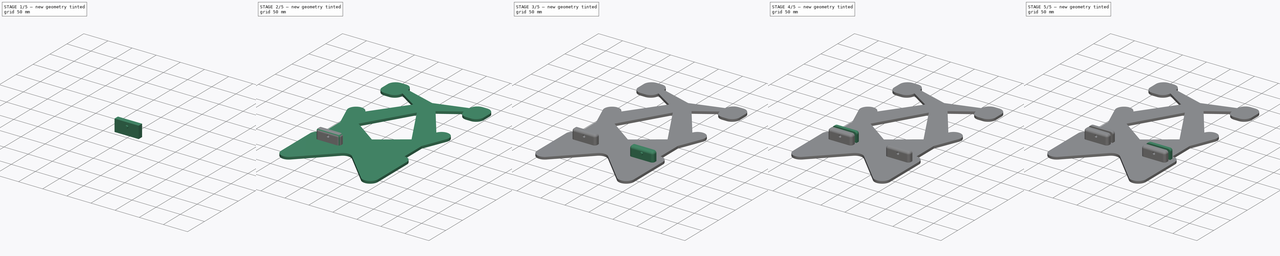
[diagram: build sequence overview — one tinted view per stage of 5, left to right]
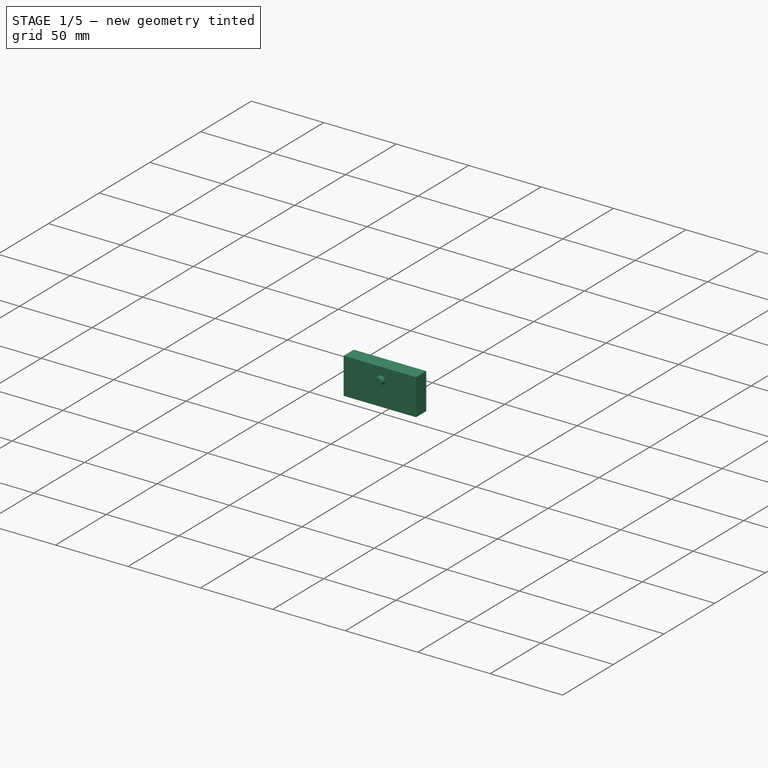
[diagram: stage 1 of 5 — iso view after this stage's code; geometry added in this stage tinted green]
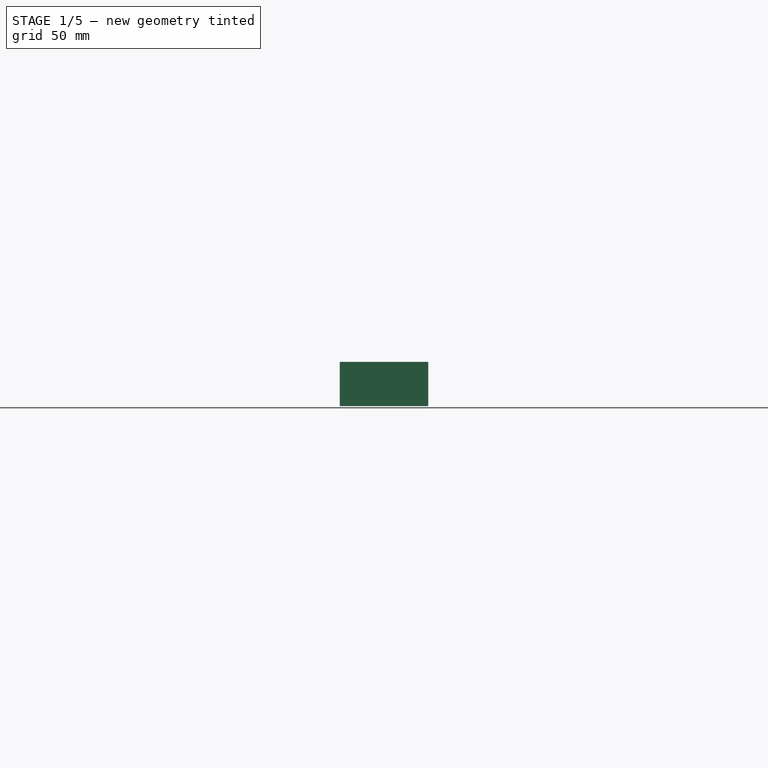
[diagram: stage 1 of 5 — front view after this stage's code; geometry added in this stage tinted green]
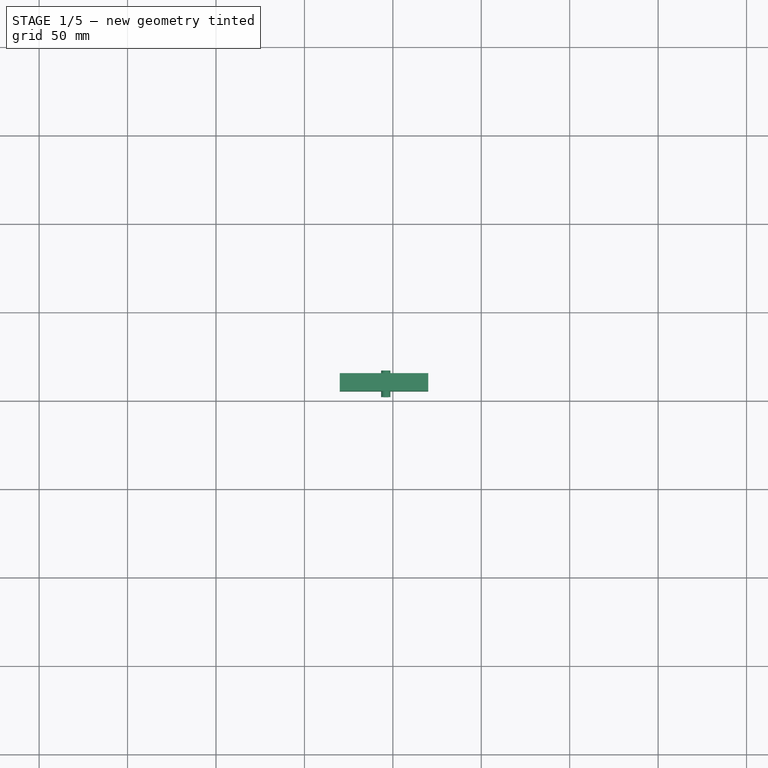
[diagram: stage 1 of 5 — top view after this stage's code; geometry added in this stage tinted green]
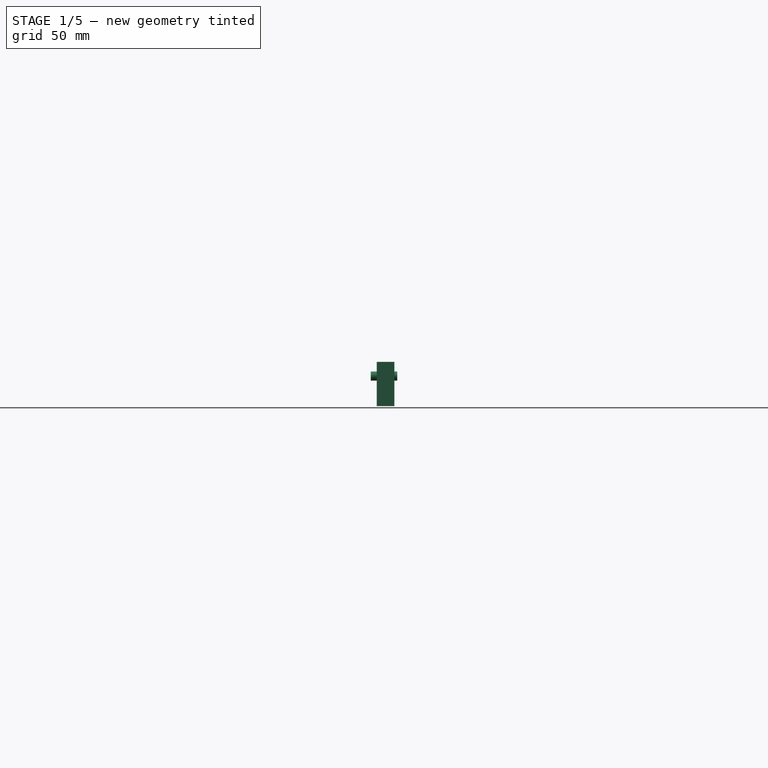
[diagram: stage 1 of 5 — right view after this stage's code; geometry added in this stage tinted green]
FCSTD DOCUMENT  (FreeCAD 0.21R33771 (Git))
Label: SFT-Mk5-Base Pad
License: Public Domain
LicenseURL: https://en.wikipedia.org/wiki/Public_domain
objects: Part::MultiFuse×6, Part::Box×4, Part::Fillet×4, Sketcher::SketchObject×3, Part::Extrusion×3, Part::Cylinder×2, Part::Cut×2, PartDesign::Line×2, PartDesign::CoordinateSystem×1, App::Link×1, App::Part×1
note: 27 computed .brp shape members not serialized (recipe doc carries the construction recipe); baked Part::Feature solids carry a one-line shape summary decoded from their .brp

FEATURE [Part::Box] Box  label="Cube"
  AttacherType = Attacher::AttachEngine3D
  Height = 25
  Length = 50
  Placement = pos=(-80,-44.6,0) rot=(0,0,1;0rad)
  Width = 10
FEATURE [Part::Cylinder] Cylinder
  Angle = 360
  AttacherType = Attacher::AttachEngine3D
  FirstAngle = 0
  Height = 15
  Placement = pos=(-54,-33,17) rot=(1,0,0;1.5708rad)
  Radius = 2.6
  SecondAngle = 0
FEATURE [Sketcher::SketchObject] Sketch002  label="Nut Pocket Sketch001"
  FullyConstrained = true
  MapMode = 5
  Placement = pos=(0,0,0) rot=(1,0,0;1.5708rad)
  Support = -> [XZ_Plane]
  sketch-geometry (10):
    g0: LineSegment StartX=4.07032 StartY=-2.35 StartZ=0 EndX=4.07032 EndY=2.35 EndZ=0
    g1: LineSegment StartX=4.07032 StartY=2.35 StartZ=0 EndX=0 EndY=4.7 EndZ=0
    g2: LineSegment StartX=0 StartY=4.7 StartZ=0 EndX=-4.07032 EndY=2.35 EndZ=0
    g3: LineSegment StartX=-4.07032 StartY=2.35 StartZ=0 EndX=-4.07032 EndY=-2.35 EndZ=0
    g4: LineSegment StartX=-4.07032 StartY=-2.35 StartZ=0 EndX=-9e-16 EndY=-4.7 EndZ=0
    g5: LineSegment StartX=-9e-16 StartY=-4.7 StartZ=0 EndX=4.07032 EndY=-2.35 EndZ=0
    g6: Circle CenterX=0 CenterY=0 CenterZ=0 NormalX=0 NormalY=0 NormalZ=1 AngleXU=0 Radius=4.7
    g7: LineSegment StartX=-4.07032 StartY=2.35 StartZ=0 EndX=-4.07032 EndY=4.7 EndZ=0
    g8: LineSegment StartX=4.07032 StartY=2.35 StartZ=0 EndX=4.07032 EndY=4.7 EndZ=0
    g9: LineSegment StartX=4.07032 StartY=4.7 StartZ=0 EndX=-4.07032 EndY=4.7 EndZ=0
  constraints (24):
    c: Coincident(g0,g1)
    c: Coincident(g1,g2)
    c: Coincident(g2,g3)
    c: Coincident(g3,g4)
    c: Coincident(g4,g5)
    c: Coincident(g5,g0)
    c: Equal(g0, g1-g5) x5
    c: PointOnObject(g0,g6)
    c: PointOnObject(g1,g6)
    c: PointOnObject(g2,g6)
    c: PointOnObject(g3,g6)
    c: PointOnObject(g4,g6)
    c: PointOnObject(g5,g6)
    c: Coincident(g6,g-1)
    c: Radius(g6) = 4.7
    c: PointOnObject(g1,g-2)
    c: Coincident(g7,g3)
    c: Vertical(g7)
    c: Coincident(g8,g0)
    c: Vertical(g8)
    c: Coincident(g9,g8)
    c: Coincident(g9,g7)
    c: Horizontal(g9)
    c: PointOnObject(g1,g9)
FEATURE [Part::Extrusion] Extrude002  label="Nut Pocket001"
  Base = -> Sketch002
  Dir = (0,-1,-2e-16)
  DirMode = 2
  FaceMakerClass = Part::FaceMakerBullseye
  LengthFwd = 4
  LengthRev = 0
  Placement = pos=(-54,-39.5,17) rot=(0,0,1;0rad)
  Solid = true
  Symmetric = true
FEATURE [Part::MultiFuse] Fusion
  Shapes = -> [Cylinder,Extrude002]
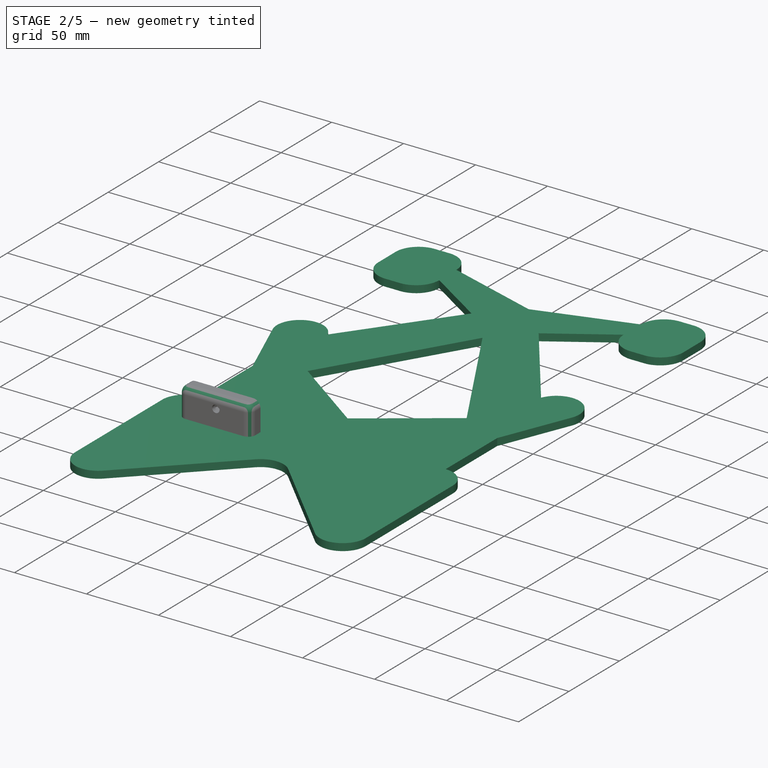
[diagram: stage 2 of 5 — iso view after this stage's code; geometry added in this stage tinted green]
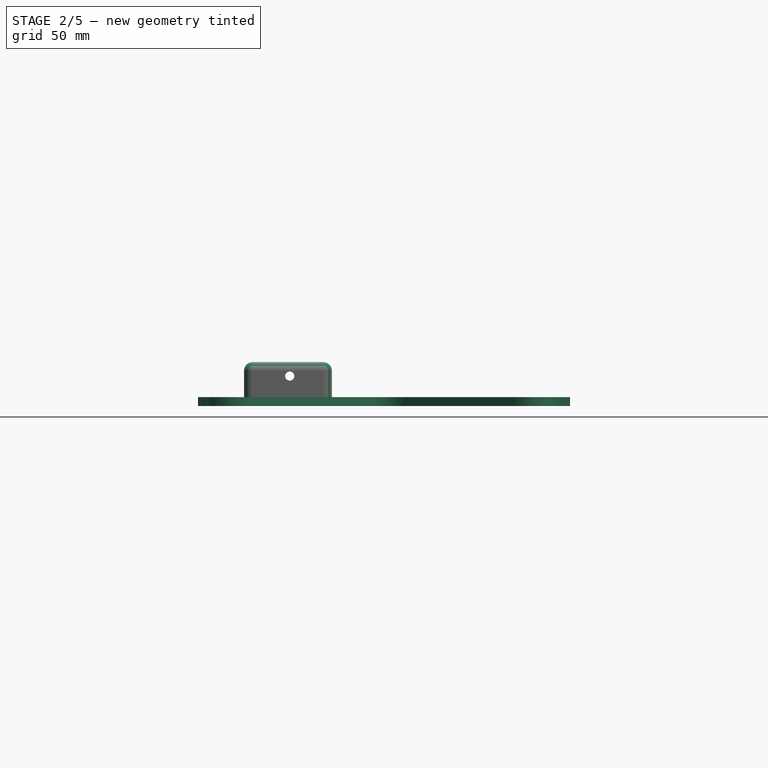
[diagram: stage 2 of 5 — front view after this stage's code; geometry added in this stage tinted green]
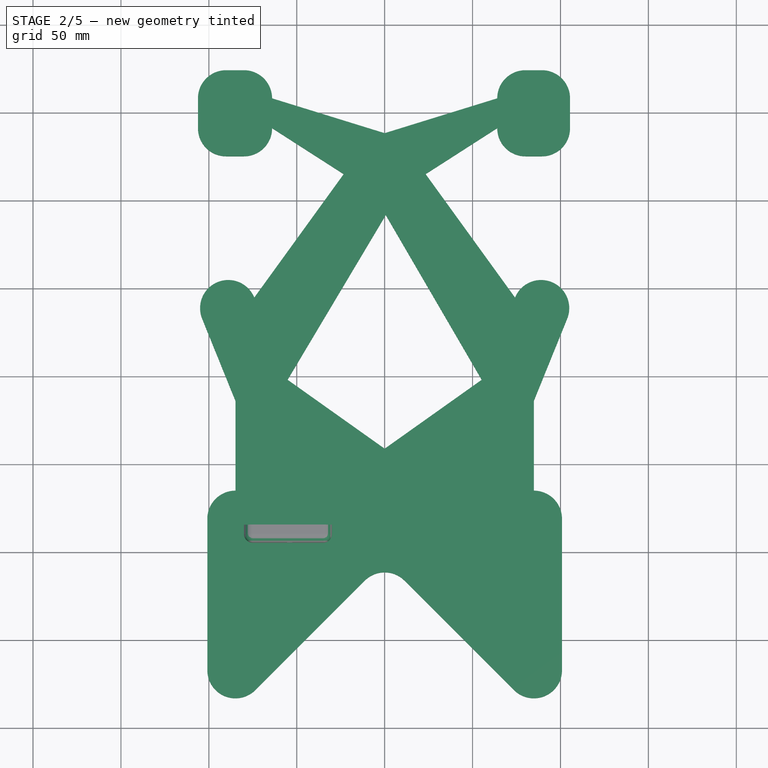
[diagram: stage 2 of 5 — top view after this stage's code; geometry added in this stage tinted green]
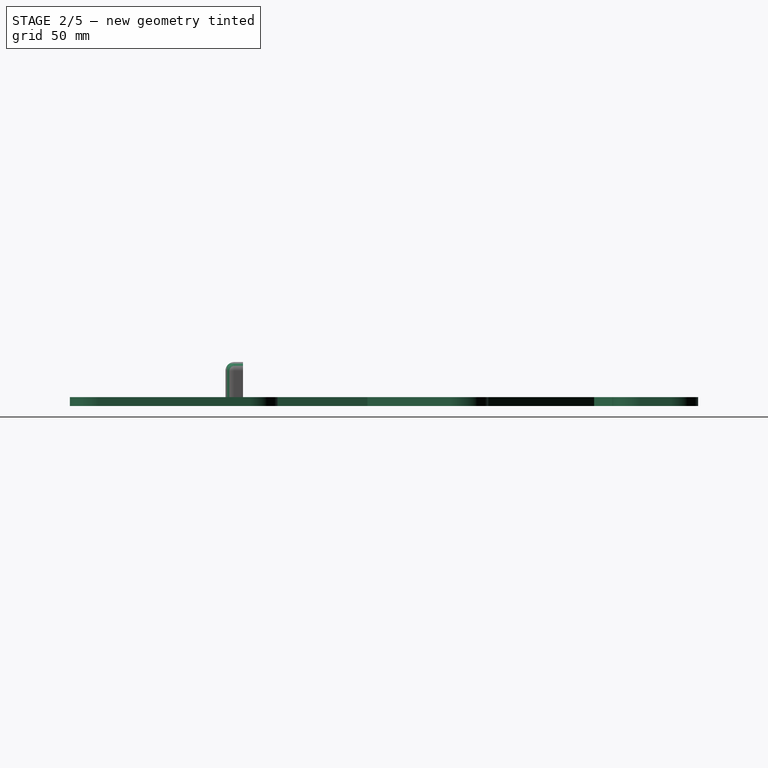
[diagram: stage 2 of 5 — right view after this stage's code; geometry added in this stage tinted green]
FEATURE [PartDesign::CoordinateSystem] LCS_Origin
  AttacherType = Attacher::AttachEngine3D
  MapMode = 2
  Support = -> [X_Axis]
FEATURE [Sketcher::SketchObject] Sketch
  AttachmentOffset = pos=(0,0,10) rot=(1,0,0;1.5708rad)
  FullyConstrained = false
  MapMode = 5
  Placement = pos=(0,-10,-2.2e-15) rot=(1,0,0;3.14159rad)
  Support = -> [XZ_Plane]
  sketch-geometry (49):
    g0: ArcOfCircle CenterX=-28.1873 CenterY=65.0677 CenterZ=0 NormalX=0 NormalY=0 NormalZ=1 AngleXU=0 Radius=5 StartAngle=1.5708 EndAngle=3.14159
    g1: LineSegment StartX=-28.1873 StartY=70.0677 StartZ=0 EndX=-25.0083 EndY=70.0677 EndZ=0
    g2: ArcOfCircle CenterX=-25.0083 CenterY=65.0677 CenterZ=0 NormalX=0 NormalY=0 NormalZ=1 AngleXU=0 Radius=5 StartAngle=6e-16 EndAngle=1.5708
    g3: LineSegment StartX=-20.0083 StartY=65.0677 StartZ=0 EndX=-20.0083 EndY=59.7631 EndZ=0
    g4: ArcOfCircle CenterX=-25.0083 CenterY=59.7631 CenterZ=0 NormalX=0 NormalY=0 NormalZ=1 AngleXU=0 Radius=5 StartAngle=4.71239 EndAngle=6.28319
    g5: LineSegment StartX=-25.0083 StartY=54.7631 StartZ=0 EndX=-28.1873 EndY=54.7631 EndZ=0
    g6: ArcOfCircle CenterX=-28.1873 CenterY=59.7631 CenterZ=0 NormalX=0 NormalY=0 NormalZ=1 AngleXU=0 Radius=5 StartAngle=3.14159 EndAngle=4.71239
    g7: LineSegment StartX=-33.1873 StartY=59.7631 StartZ=0 EndX=-33.1873 EndY=65.0677 EndZ=0
    g8: ArcOfCircle CenterX=25.0083 CenterY=65.0677 CenterZ=0 NormalX=0 NormalY=0 NormalZ=1 AngleXU=0 Radius=5 StartAngle=1.5708 EndAngle=3.14159
    g9: LineSegment StartX=25.0083 StartY=70.0677 StartZ=0 EndX=27.9524 EndY=70.0677 EndZ=0
    g10: ArcOfCircle CenterX=27.9524 CenterY=65.0677 CenterZ=0 NormalX=0 NormalY=0 NormalZ=1 AngleXU=0 Radius=5 StartAngle=-9e-16 EndAngle=1.5708
    g11: LineSegment StartX=32.9524 StartY=65.0677 StartZ=0 EndX=32.9524 EndY=59.7631 EndZ=0
    g12: ArcOfCircle CenterX=27.9524 CenterY=59.7631 CenterZ=0 NormalX=0 NormalY=0 NormalZ=1 AngleXU=0 Radius=5 StartAngle=4.71239 EndAngle=6.28319
    g13: LineSegment StartX=27.9524 StartY=54.7631 StartZ=0 EndX=25.0083 EndY=54.7631 EndZ=0
    g14: ArcOfCircle CenterX=25.0083 CenterY=59.7631 CenterZ=0 NormalX=0 NormalY=0 NormalZ=1 AngleXU=0 Radius=5 StartAngle=3.14159 EndAngle=4.71239
    g15: LineSegment StartX=20.0083 StartY=59.7631 StartZ=0 EndX=20.0083 EndY=65.0677 EndZ=0
    g16: Circle CenterX=0 CenterY=51.5938 CenterZ=0 NormalX=0 NormalY=0 NormalZ=1 AngleXU=0 Radius=7.28387
    g17: ArcOfCircle CenterX=-26.5206 CenterY=-9.67417 CenterZ=0 NormalX=0 NormalY=0 NormalZ=1 AngleXU=0 Radius=5 StartAngle=1.5708 EndAngle=3.14159
    g18: ArcOfCircle CenterX=26.5206 CenterY=-9.67417 CenterZ=0 NormalX=0 NormalY=0 NormalZ=1 AngleXU=0 Radius=5 StartAngle=0 EndAngle=1.5708
    g19: LineSegment StartX=26.5206 StartY=-4.67417 StartZ=0 EndX=-26.5206 EndY=-4.67417 EndZ=0
    g20: ArcOfCircle CenterX=21.8865 CenterY=13.16 CenterZ=0 NormalX=0 NormalY=0 NormalZ=1 AngleXU=0 Radius=5 StartAngle=2.75664 EndAngle=5.89823
    g21: ArcOfCircle CenterX=27.8077 CenterY=27.774 CenterZ=0 NormalX=0 NormalY=0 NormalZ=1 AngleXU=0 Radius=5 StartAngle=5.89823 EndAngle=9.03983
    g22: LineSegment StartX=26.5206 StartY=11.2824 StartZ=0 EndX=32.4418 EndY=25.8965 EndZ=0
    g23: LineSegment StartX=23.1736 StartY=29.6516 StartZ=0 EndX=17.2525 EndY=15.0375 EndZ=0
    g24: ArcOfCircle CenterX=-21.8865 CenterY=13.16 CenterZ=0 NormalX=0 NormalY=0 NormalZ=1 AngleXU=0 Radius=5 StartAngle=3.52655 EndAngle=6.66814
    g25: ArcOfCircle CenterX=-27.8077 CenterY=27.774 CenterZ=0 NormalX=0 NormalY=0 NormalZ=1 AngleXU=0 Radius=5 StartAngle=0.384952 EndAngle=3.52655
    g26: LineSegment StartX=-17.2525 StartY=15.0375 StartZ=0 EndX=-23.1736 EndY=29.6516 EndZ=0
    g27: LineSegment StartX=-32.4418 StartY=25.8965 StartZ=0 EndX=-26.5206 EndY=11.2824 EndZ=0
    g28: LineSegment StartX=-20.0083 StartY=59.7631 StartZ=0 EndX=-7.28387 EndY=51.5938 EndZ=0
    g29: LineSegment StartX=-20.0083 StartY=65.0677 StartZ=0 EndX=0 EndY=58.8776 EndZ=0
    g30: LineSegment StartX=20.0083 StartY=65.0677 StartZ=0 EndX=0 EndY=58.8776 EndZ=0
    g31: LineSegment StartX=20.0083 StartY=59.7631 StartZ=0 EndX=7.28387 EndY=51.5938 EndZ=0
    g32: LineSegment StartX=7.28387 StartY=51.5938 StartZ=0 EndX=23.1736 EndY=29.6516 EndZ=0
    g33: LineSegment StartX=-23.1736 StartY=29.6516 StartZ=0 EndX=-7.28387 EndY=51.5938 EndZ=0
    g34: LineSegment StartX=-7.28387 StartY=51.5938 StartZ=0 EndX=7.28387 EndY=51.5938 EndZ=0
    g35: LineSegment StartX=-26.5206 StartY=11.2824 StartZ=0 EndX=-26.5206 EndY=-4.67417 EndZ=0
    g36: LineSegment StartX=26.5206 StartY=11.2824 StartZ=0 EndX=26.5206 EndY=-4.67417 EndZ=0
    g37: ArcOfCircle CenterX=-26.5206 CenterY=-36.5843 CenterZ=0 NormalX=0 NormalY=0 NormalZ=1 AngleXU=0 Radius=5 StartAngle=3.14159 EndAngle=5.49779
    g38: ArcOfCircle CenterX=0 CenterY=-24.2058 CenterZ=0 NormalX=0 NormalY=0 NormalZ=1 AngleXU=0 Radius=5 StartAngle=0.785398 EndAngle=2.35619
    g39: ArcOfCircle CenterX=26.5206 CenterY=-36.5843 CenterZ=0 NormalX=0 NormalY=0 NormalZ=1 AngleXU=0 Radius=5 StartAngle=3.92699 EndAngle=6.28319
    g40: LineSegment StartX=-31.5206 StartY=-9.67417 StartZ=0 EndX=-31.5206 EndY=-36.5843 EndZ=0
    g41: LineSegment StartX=-22.9851 StartY=-40.1199 StartZ=0 EndX=-3.53553 EndY=-20.6703 EndZ=0
    g42: LineSegment StartX=3.53553 StartY=-20.6703 StartZ=0 EndX=22.9851 EndY=-40.1199 EndZ=0
    g43: LineSegment StartX=31.5206 StartY=-36.5843 StartZ=0 EndX=31.5206 EndY=-9.67417 EndZ=0
    g44: LineSegment StartX=0.198789 StartY=44.3126 StartZ=0 EndX=-17.2525 EndY=15.0375 EndZ=0
    g45: LineSegment StartX=-17.2525 StartY=15.0375 StartZ=0 EndX=0 EndY=2.78507 EndZ=0
    g46: LineSegment StartX=0 StartY=2.78507 StartZ=0 EndX=17.2525 EndY=15.0375 EndZ=0
    g47: LineSegment StartX=17.2525 StartY=15.0375 StartZ=0 EndX=0.198789 EndY=44.3126 EndZ=0
    g48: LineSegment StartX=-26.5206 StartY=-36.5843 StartZ=0 EndX=26.5206 EndY=-36.5843 EndZ=0
  constraints (103):
    c: Tangent(g0,g1) = 1.5708
    c: Tangent(g1,g2) = 1.5708
    c: Tangent(g2,g3) = 1.5708
    c: Tangent(g3,g4) = 1.5708
    c: Tangent(g4,g5) = 1.5708
    c: Tangent(g5,g6) = 1.5708
    c: Tangent(g6,g7) = 1.5708
    c: Tangent(g7,g0) = 1.5708
    c: Horizontal(g1)
    c: Horizontal(g5)
    c: Vertical(g3)
    c: Vertical(g7)
    c: Radius(g2) = 5  'CornerRadius'
    c: Tangent(g8,g9) = 1.5708
    c: Tangent(g9,g10) = 1.5708
    c: Tangent(g10,g11) = 1.5708
    c: Tangent(g11,g12) = 1.5708
    c: Tangent(g12,g13) = 1.5708
    c: Tangent(g13,g14) = 1.5708
    c: Tangent(g14,g15) = 1.5708
    c: Tangent(g15,g8) = 1.5708
    c: Horizontal(g9)
    c: Horizontal(g13)
    c: Vertical(g11)
    c: Vertical(g15)
    c: Tangent(g18,g19) = -1.5708
    c: Tangent(g19,g17) = -1.5708
    c: Tangent(g20,g22) = -1.5708
    c: Tangent(g22,g21) = -1.5708
    c: Tangent(g21,g23) = -1.5708
    c: Tangent(g23,g20) = -1.5708
    c: Tangent(g24,g26) = -1.5708
    c: Tangent(g26,g25) = -1.5708
    c: Tangent(g25,g27) = -1.5708
    c: Tangent(g27,g24) = -1.5708
    c: Coincident(g28,g3)
    c: PointOnObject(g28,g16)
    c: Coincident(g29,g2)
    c: PointOnObject(g29,g16)
    c: Coincident(g30,g8)
    c: Coincident(g31,g14)
    c: PointOnObject(g31,g16)
    c: Coincident(g32,g31)
    c: Coincident(g32,g21)
    c: Coincident(g33,g25)
    c: PointOnObject(g16,g-2)
    c: Coincident(g30,g29)
    c: PointOnObject(g29,g-2)
    c: Coincident(g34,g28)
    c: Coincident(g34,g31)
    c: Horizontal(g34)
    c: PointOnObject(g16,g34)
    c: Coincident(g33,g28)
    c: Coincident(g35,g24)
    c: Coincident(g35,g17)
    c: Coincident(g36,g20)
    c: Coincident(g36,g18)
    c: PointOnObject(g38,g-2)
    c: Vertical(g43)
    c: Equal(g0,g2)
    c: Equal(g2,g6)
    c: Equal(g6,g4)
    c: Equal(g4,g8)
    c: Equal(g8,g14)
    c: Equal(g14,g12)
    c: Equal(g12,g10)
    c: Equal(g10,g25)
    c: Equal(g25,g21)
    c: Equal(g21,g18)
    c: Equal(g18,g17)
    c: Equal(g17,g24)
    c: Equal(g24,g20)
    c: Equal(g20,g38)
    c: Equal(g38,g37)
    c: Equal(g37,g39)
    c: Vertical(g40)
    c: Vertical(g36)
    c: Vertical(g35)
    c: Tangent(g40,g17) = -1.5708
    c: Tangent(g43,g18) = -1.5708
    c: Tangent(g42,g38) = 1.5708
    c: Tangent(g41,g38) = 1.5708
    c: Tangent(g42,g39) = -1.5708
    c: Tangent(g43,g39) = -1.5708
    c: Tangent(g41,g37) = -1.5708
    c: Tangent(g40,g37) = -1.5708
    c: Symmetric(g2,g8,g-2)
    c: Equal(g31,g28)
    c: Symmetric(g21,g25,g-2)
    c: Symmetric(g20,g24,g-2)
    c: Horizontal(g19)
    c: Angle(g41,g42) = 1.5708
    c: PointOnObject(g44,g16)
    c: Coincident(g44,g24)
    c: Coincident(g45,g44)
    c: PointOnObject(g45,g-2)
    c: Coincident(g46,g45)
    c: Coincident(g46,g20)
    c: Coincident(g47,g46)
    c: Coincident(g47,g44)
    c: Coincident(g48,g37)
    c: Coincident(g48,g39)
    c: Horizontal(g48)
FEATURE [App::Link] Link  label="Sketch001"
  LinkedObject = -> Sketch
  Scale = 3.2
  ScaleVector = (3.2,3.2,3.2)
FEATURE [Part::Extrusion] Extrude
  Base = -> Link
  Dir = (0,0,1)
  DirMode = 2
  FaceMakerClass = Part::FaceMakerBullseye
  LengthFwd = 5
  LengthRev = 0
  Solid = true
  Symmetric = false
FEATURE [Part::Fillet] Fillet002
  Base = -> Box
  Edges = 5 edges r=5: [Edge1,Edge2,Edge5,Edge6,Edge10]
FEATURE [Part::Cut] Cut
  Base = -> Fillet002
  Tool = -> Fusion
FEATURE [Part::MultiFuse] Fusion002
  Shapes = -> [Extrude,Cut]
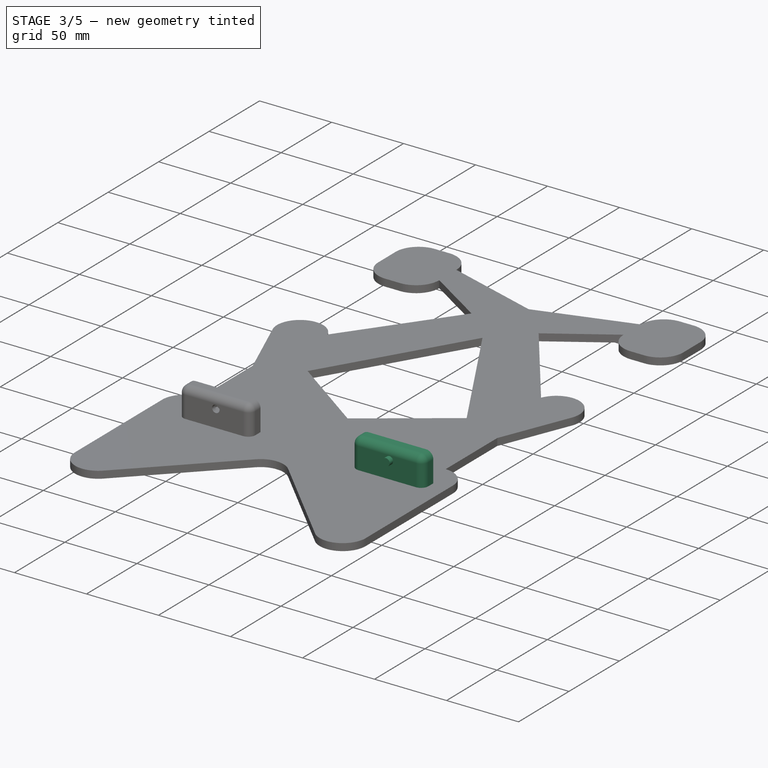
[diagram: stage 3 of 5 — iso view after this stage's code; geometry added in this stage tinted green]
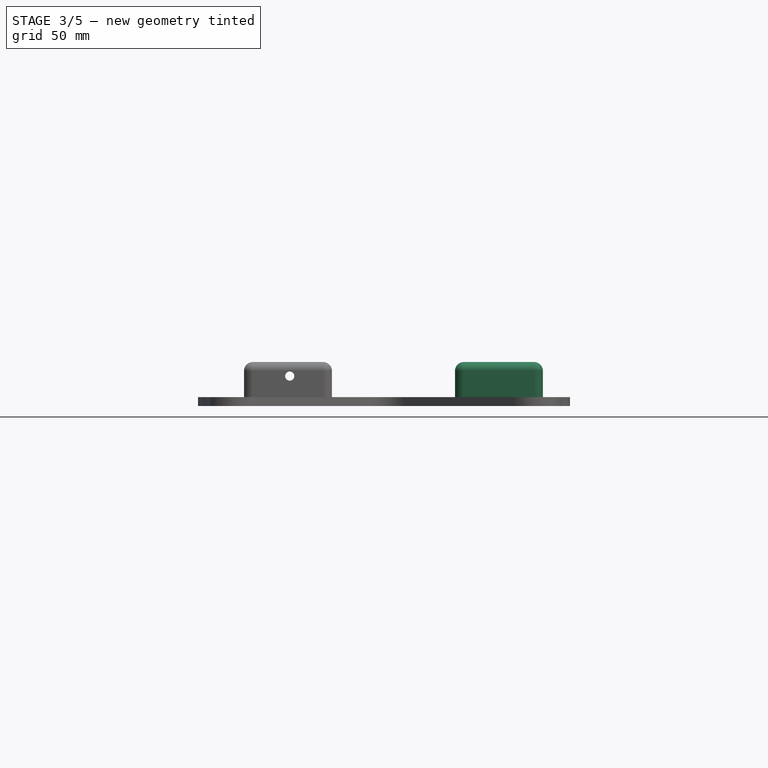
[diagram: stage 3 of 5 — front view after this stage's code; geometry added in this stage tinted green]
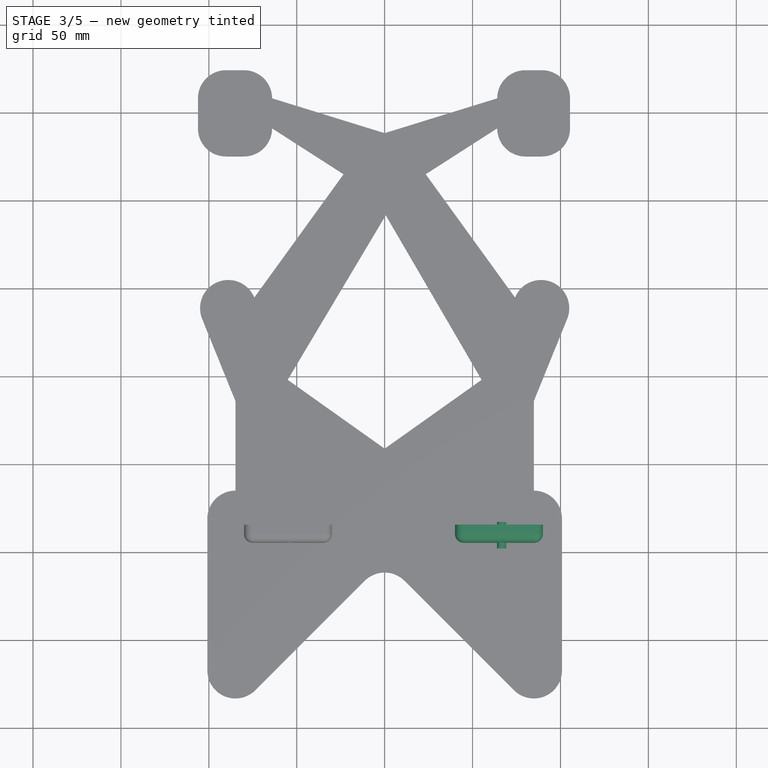
[diagram: stage 3 of 5 — top view after this stage's code; geometry added in this stage tinted green]
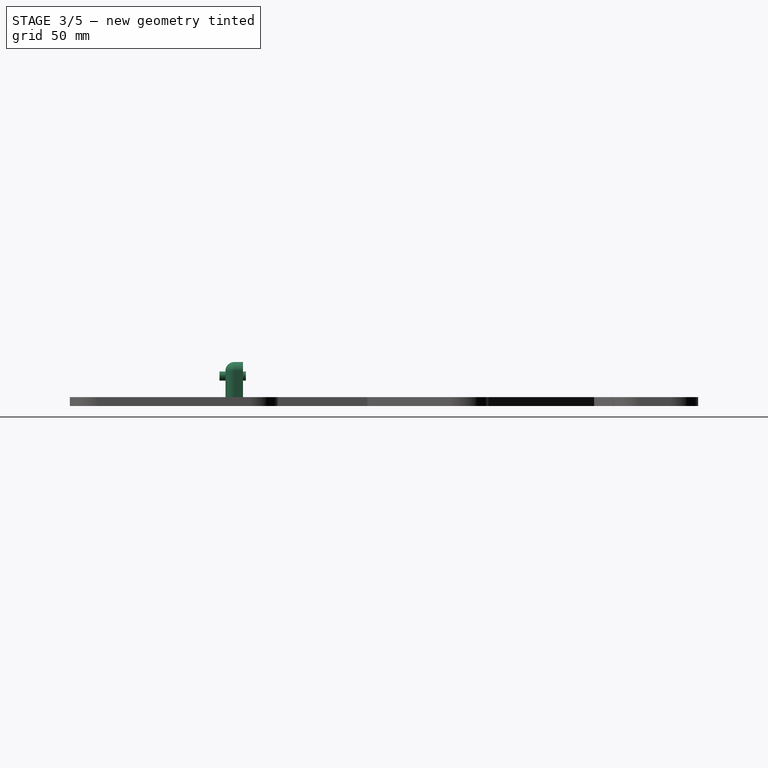
[diagram: stage 3 of 5 — right view after this stage's code; geometry added in this stage tinted green]
FEATURE [Part::Box] Box002  label="Cube002"
  AttacherType = Attacher::AttachEngine3D
  Height = 25
  Length = 50
  Placement = pos=(40,-44.6,0) rot=(0,0,1;0rad)
  Width = 10
FEATURE [Part::Fillet] Fillet001
  Base = -> Box002
  Edges = 5 edges r=5: [Edge1,Edge2,Edge5,Edge6,Edge10]
FEATURE [Part::Cylinder] Cylinder001
  Angle = 360
  AttacherType = Attacher::AttachEngine3D
  FirstAngle = 0
  Height = 15
  Placement = pos=(66.5,-33,17) rot=(1,0,0;1.5708rad)
  Radius = 2.6
  SecondAngle = 0
FEATURE [Sketcher::SketchObject] Sketch001  label="Nut Pocket Sketch"
  FullyConstrained = true
  MapMode = 5
  Placement = pos=(0,0,0) rot=(1,0,0;1.5708rad)
  Support = -> [XZ_Plane]
  sketch-geometry (10):
    g0: LineSegment StartX=4.07032 StartY=-2.35 StartZ=0 EndX=4.07032 EndY=2.35 EndZ=0
    g1: LineSegment StartX=4.07032 StartY=2.35 StartZ=0 EndX=0 EndY=4.7 EndZ=0
    g2: LineSegment StartX=0 StartY=4.7 StartZ=0 EndX=-4.07032 EndY=2.35 EndZ=0
    g3: LineSegment StartX=-4.07032 StartY=2.35 StartZ=0 EndX=-4.07032 EndY=-2.35 EndZ=0
    g4: LineSegment StartX=-4.07032 StartY=-2.35 StartZ=0 EndX=-9e-16 EndY=-4.7 EndZ=0
    g5: LineSegment StartX=-9e-16 StartY=-4.7 StartZ=0 EndX=4.07032 EndY=-2.35 EndZ=0
    g6: Circle CenterX=0 CenterY=0 CenterZ=0 NormalX=0 NormalY=0 NormalZ=1 AngleXU=0 Radius=4.7
    g7: LineSegment StartX=-4.07032 StartY=2.35 StartZ=0 EndX=-4.07032 EndY=4.7 EndZ=0
    g8: LineSegment StartX=4.07032 StartY=2.35 StartZ=0 EndX=4.07032 EndY=4.7 EndZ=0
    g9: LineSegment StartX=4.07032 StartY=4.7 StartZ=0 EndX=-4.07032 EndY=4.7 EndZ=0
  constraints (24):
    c: Coincident(g0,g1)
    c: Coincident(g1,g2)
    c: Coincident(g2,g3)
    c: Coincident(g3,g4)
    c: Coincident(g4,g5)
    c: Coincident(g5,g0)
    c: Equal(g0, g1-g5) x5
    c: PointOnObject(g0,g6)
    c: PointOnObject(g1,g6)
    c: PointOnObject(g2,g6)
    c: PointOnObject(g3,g6)
    c: PointOnObject(g4,g6)
    c: PointOnObject(g5,g6)
    c: Coincident(g6,g-1)
    c: Radius(g6) = 4.7
    c: PointOnObject(g1,g-2)
    c: Coincident(g7,g3)
    c: Vertical(g7)
    c: Coincident(g8,g0)
    c: Vertical(g8)
    c: Coincident(g9,g8)
    c: Coincident(g9,g7)
    c: Tangent(g9,g6)
    c: Horizontal(g9)
FEATURE [Part::Extrusion] Extrude001  label="Nut Pocket"
  Base = -> Sketch001
  Dir = (0,-1,-2e-16)
  DirMode = 2
  FaceMakerClass = Part::FaceMakerBullseye
  LengthFwd = 4
  LengthRev = 0
  Placement = pos=(66.5,-39.5,17) rot=(0,0,1;0rad)
  Solid = true
  Symmetric = true
FEATURE [Part::MultiFuse] Fusion001
  Shapes = -> [Extrude001,Cylinder001]
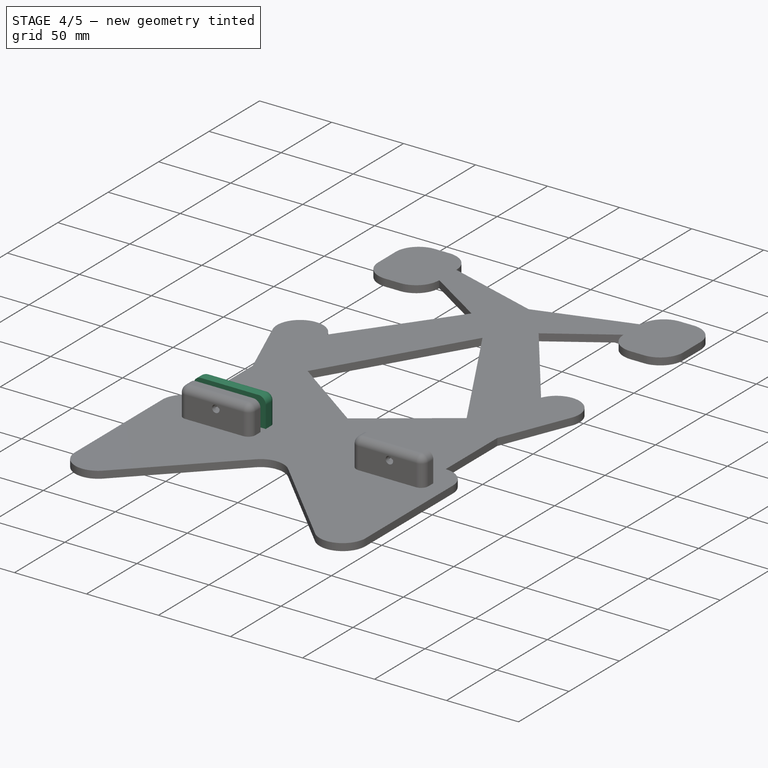
[diagram: stage 4 of 5 — iso view after this stage's code; geometry added in this stage tinted green]
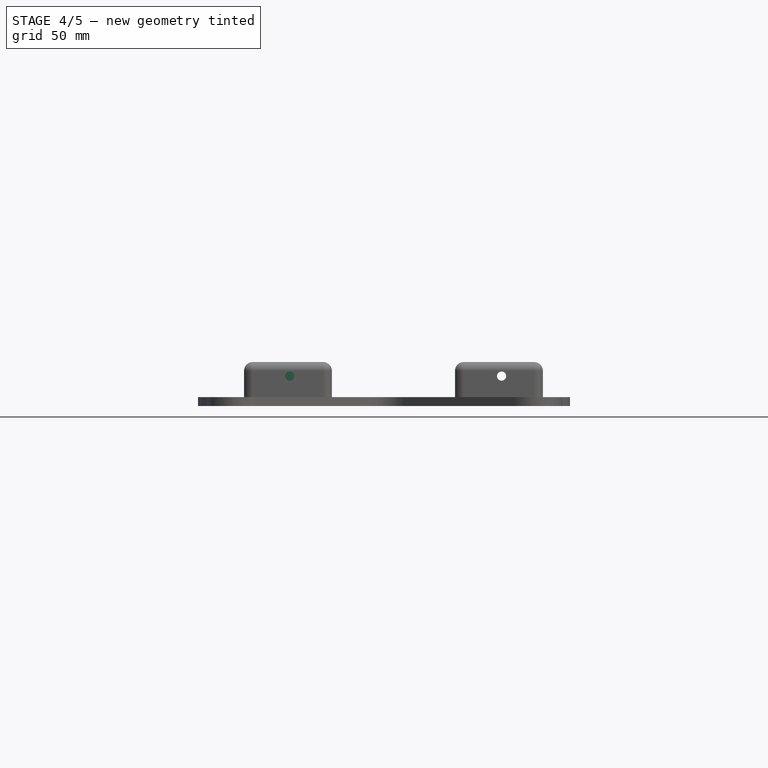
[diagram: stage 4 of 5 — front view after this stage's code; geometry added in this stage tinted green]
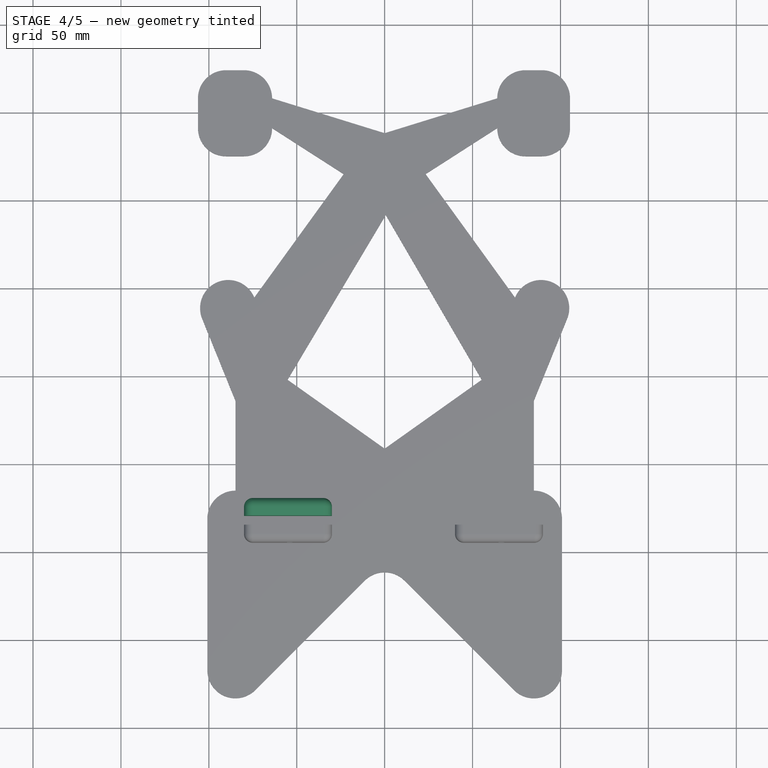
[diagram: stage 4 of 5 — top view after this stage's code; geometry added in this stage tinted green]
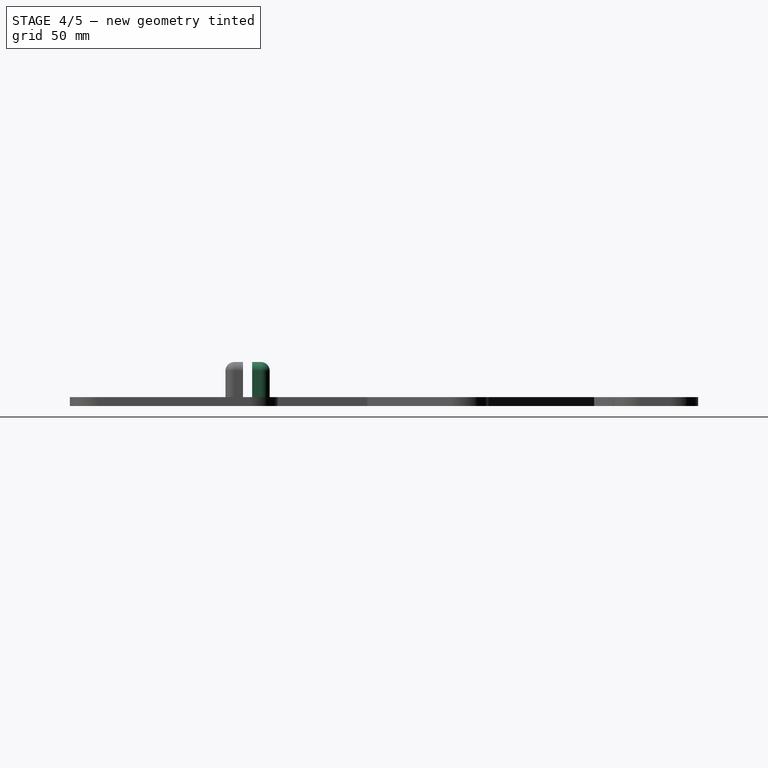
[diagram: stage 4 of 5 — right view after this stage's code; geometry added in this stage tinted green]
FEATURE [Part::Box] Box001  label="Cube001"
  AttacherType = Attacher::AttachEngine3D
  Height = 25
  Length = 50
  Placement = pos=(-80,-29.4,0) rot=(0,0,1;0rad)
  Width = 10
FEATURE [Part::Fillet] Fillet003
  Base = -> Box001
  Edges = 5 edges r=5: [Edge2,Edge3,Edge6,Edge7,Edge12]
FEATURE [Part::Cut] Cut001
  Base = -> Fillet001
  Tool = -> Fusion001
FEATURE [Part::MultiFuse] Fusion003
  Shapes = -> [Fusion002,Cut001]
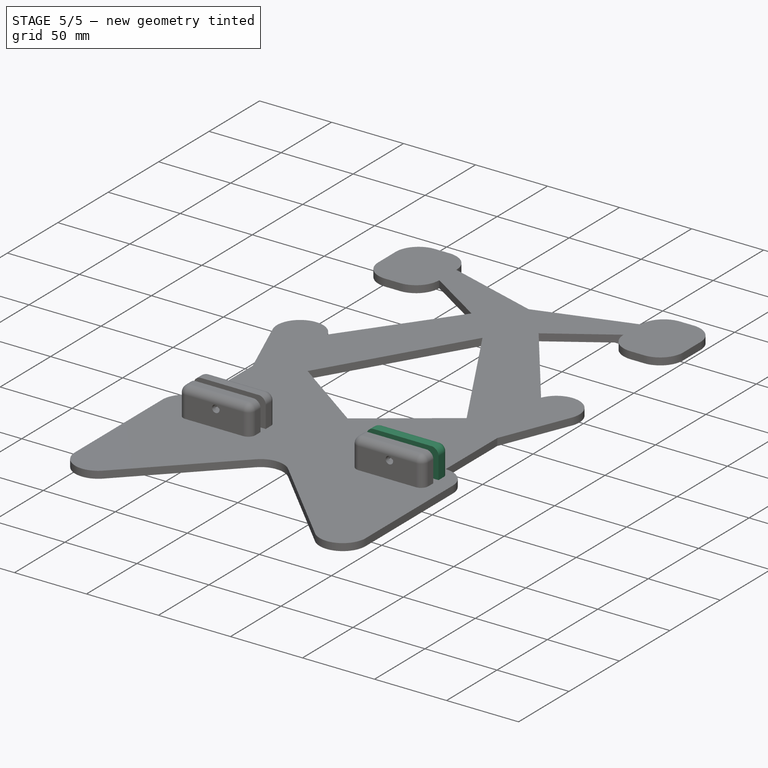
[diagram: stage 5 of 5 — iso view after this stage's code; geometry added in this stage tinted green]
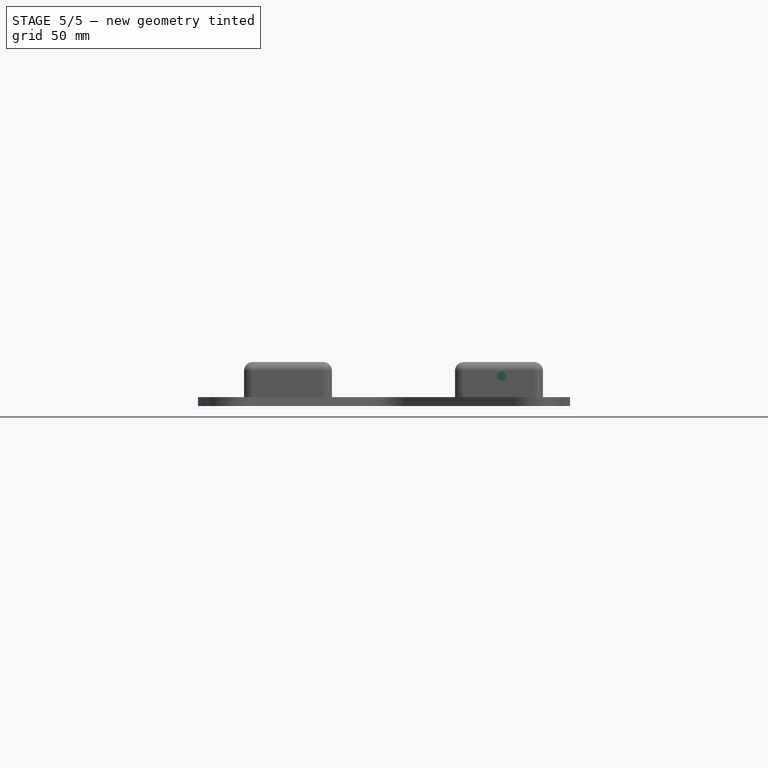
[diagram: stage 5 of 5 — front view after this stage's code; geometry added in this stage tinted green]
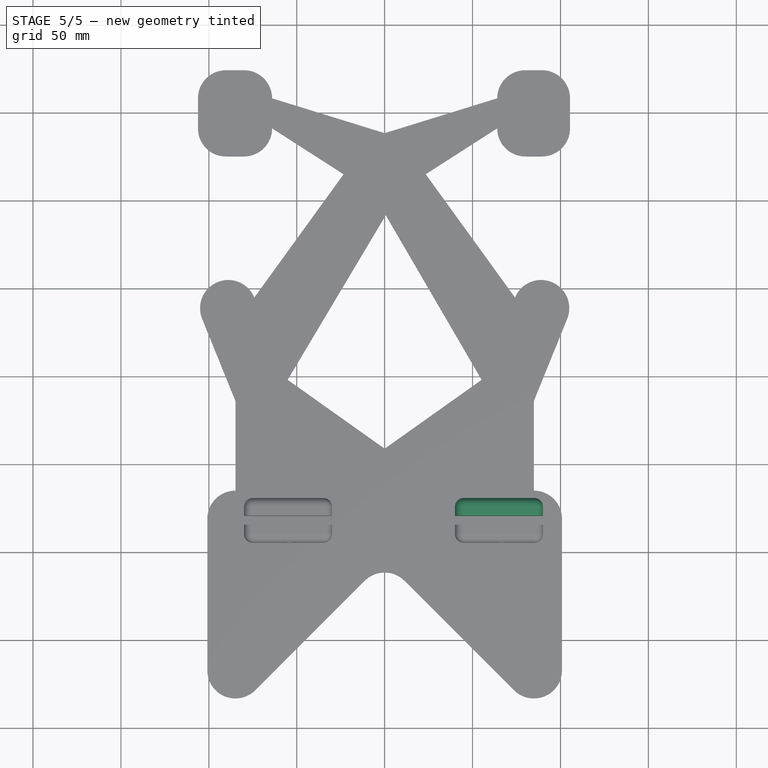
[diagram: stage 5 of 5 — top view after this stage's code; geometry added in this stage tinted green]
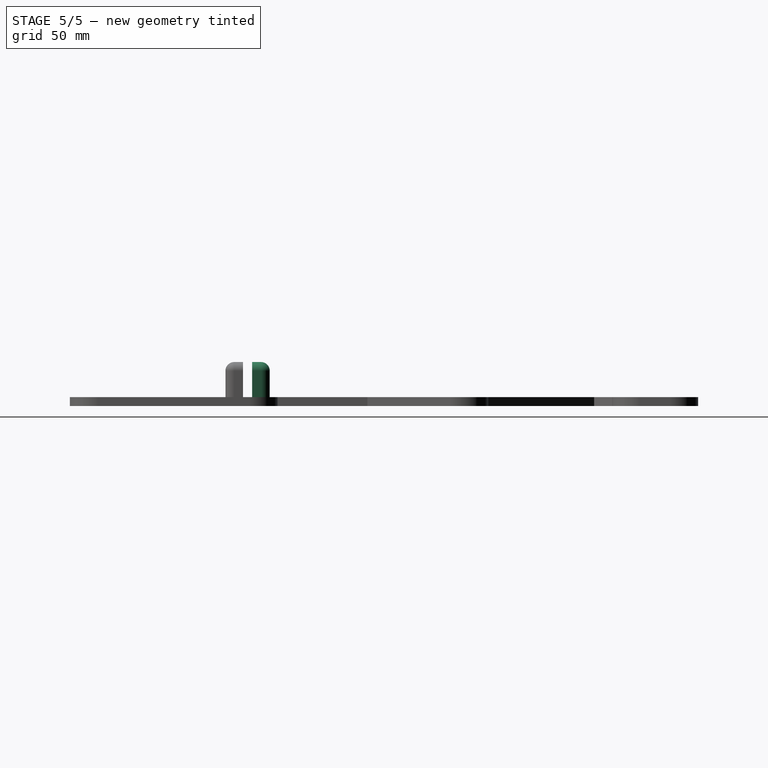
[diagram: stage 5 of 5 — right view after this stage's code; geometry added in this stage tinted green]
FEATURE [Part::Box] Box003  label="Cube003"
  AttacherType = Attacher::AttachEngine3D
  Height = 25
  Length = 50
  Placement = pos=(40,-29.4,0) rot=(0,0,1;0rad)
  Width = 10
FEATURE [Part::Fillet] Fillet
  Base = -> Box003
  Edges = 5 edges r=5: [Edge2,Edge3,Edge6,Edge7,Edge12]
FEATURE [Part::MultiFuse] Fusion004
  Shapes = -> [Fusion003,Fillet003]
FEATURE [Part::MultiFuse] Fusion005
  Shapes = -> [Fusion004,Fillet]
FEATURE [PartDesign::Line] HoleAxis_1  label="Lockscrew Right AP"
  AttacherType = Attacher::AttachEngineLine
  Length = 7.32715
  MapMode = 19
  Placement = pos=(66.5,-44.6,17) rot=(-1,0,0;1.5708rad)
  ResizeMode = 1
  Support = -> [Fusion005]
FEATURE [PartDesign::Line] HoleAxis_2  label="Lockscrew Left AP"
  AttacherType = Attacher::AttachEngineLine
  Length = 7.32715
  MapMode = 19
  Placement = pos=(-54,-44.6,17) rot=(-1,0,0;1.5708rad)
  ResizeMode = 1
  Support = -> [Fusion005]
FEATURE [App::Part] Base_Pad  label="Base Pad"
  Group = -> [LCS_Origin,Sketch,Box,Cylinder,Fillet001,Link,Fusion002,Cut,Extrude,Cut001,Cylinder001,Box003,Extrude002,Fusion003,Box001,Fusion001,Box002,Fillet003,Fillet,Fillet002,Sketch002,Sketch001,Fusion,Fusion004,Extrude001,Fusion005,HoleAxis_1,HoleAxis_2]
  Origin = -> Origin
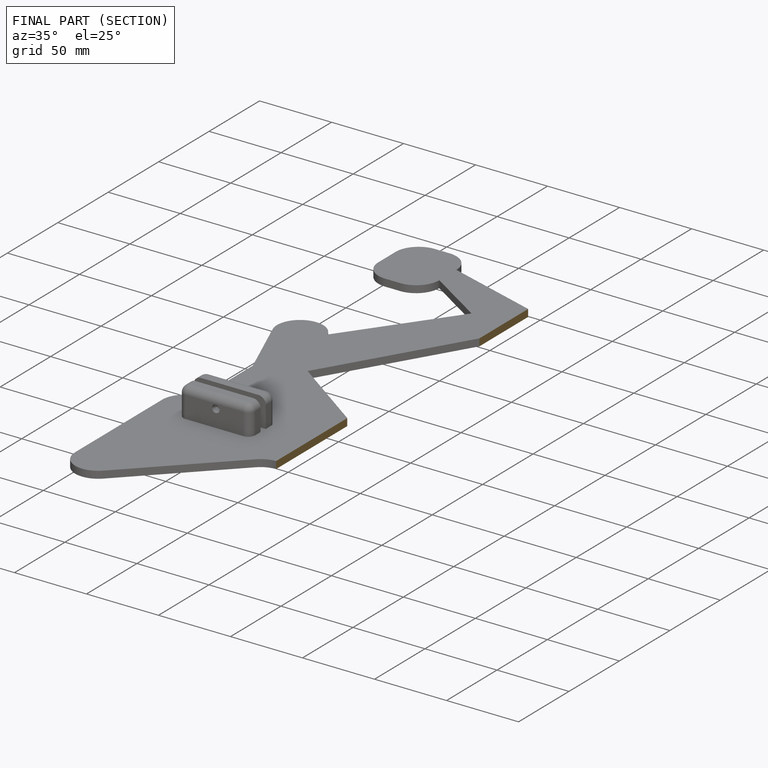
[diagram: finished part — half-section view (interior)]
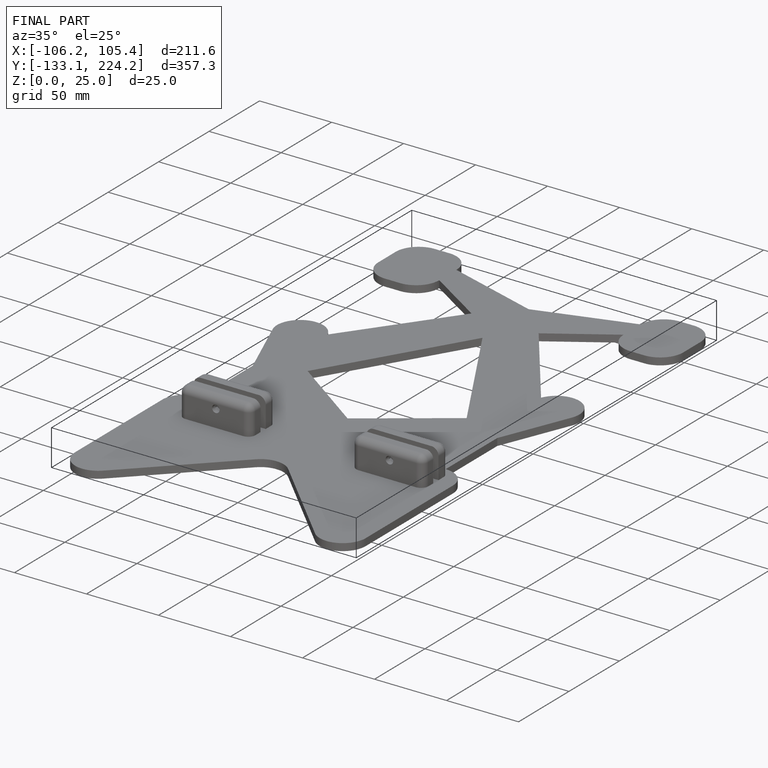
[diagram: finished part — iso view with bounding-box wireframe]
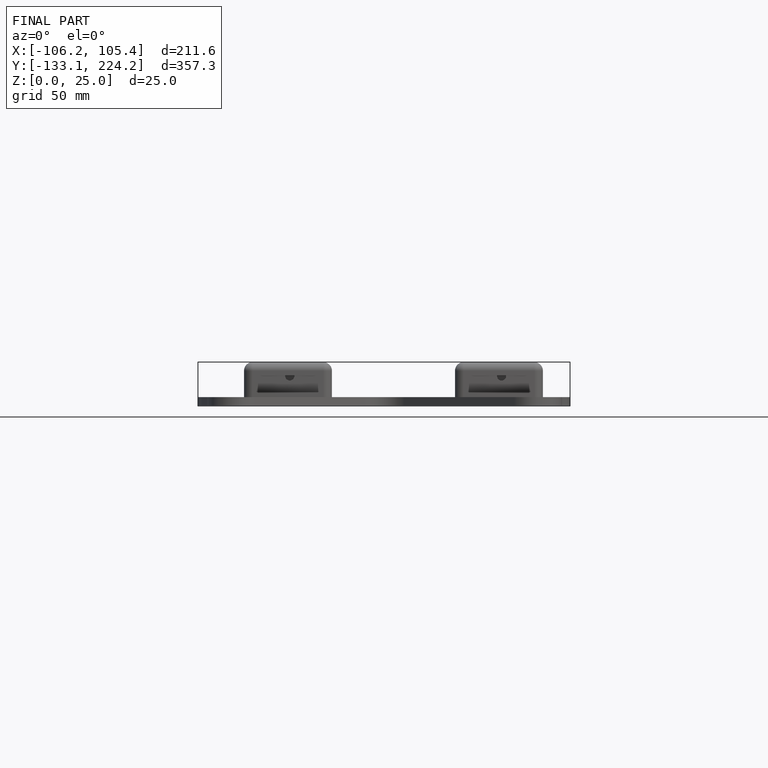
[diagram: finished part — front view with bounding-box wireframe]
